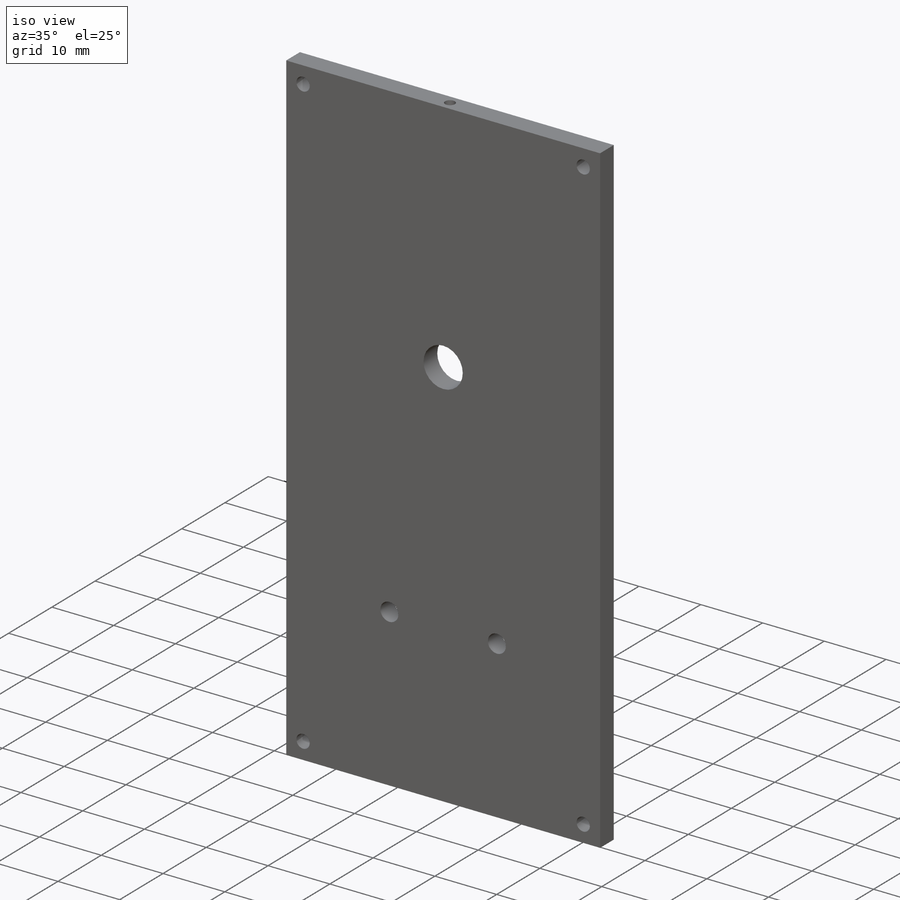
[diagram: iso view]
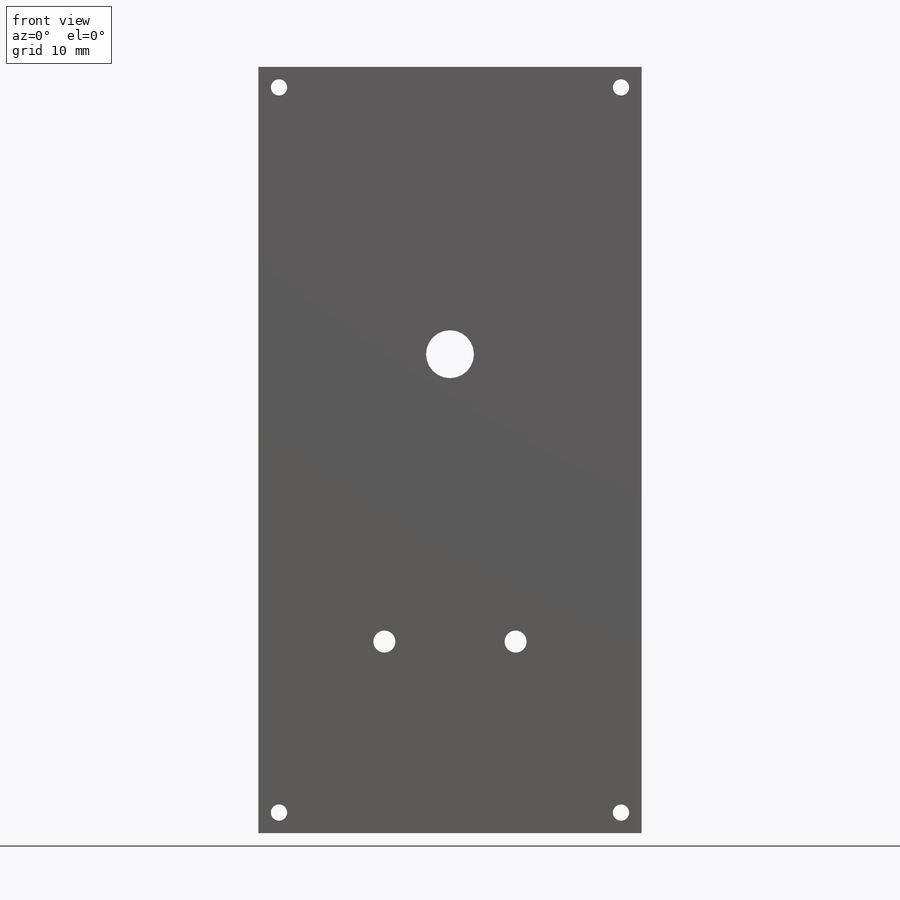
[diagram: front view]
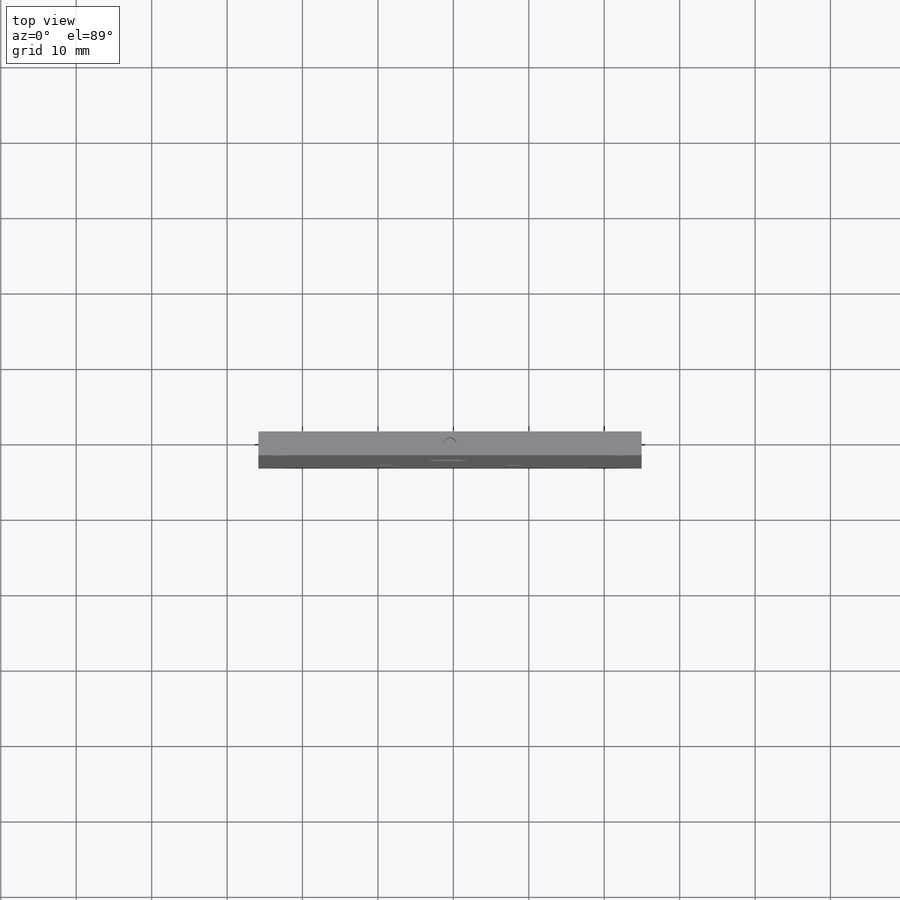
[diagram: top view]
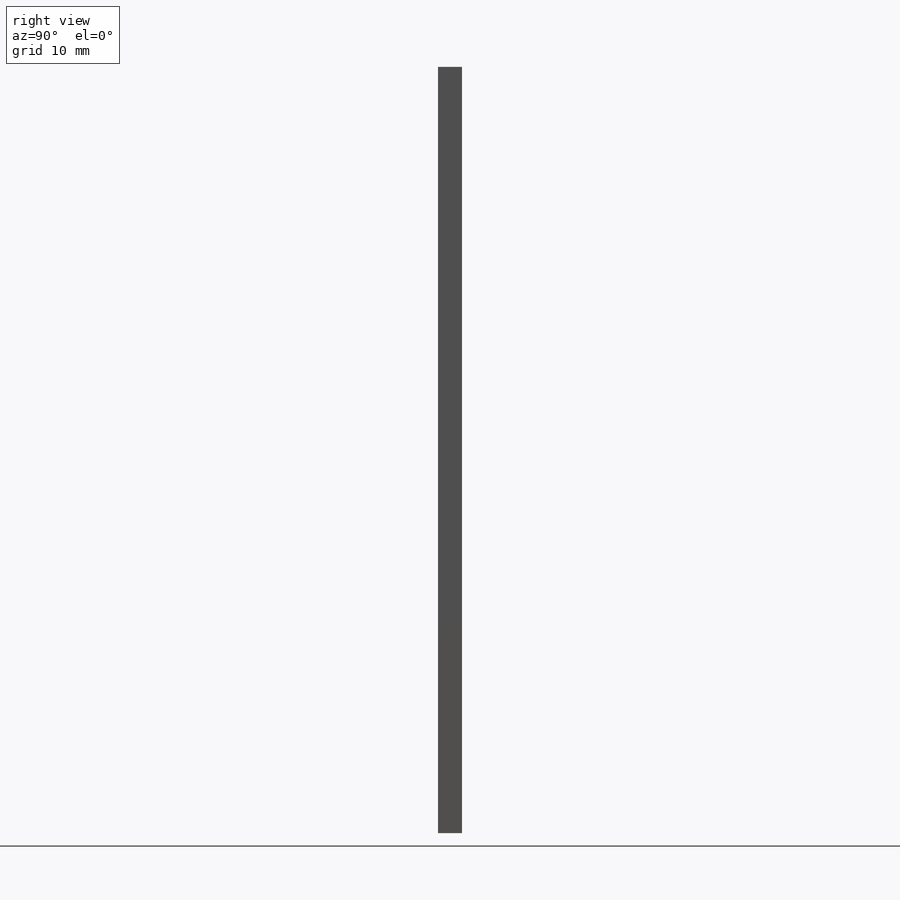
[diagram: right view]
SOLIDWORKS PART (.sldprt)
format: sldprt  version: not decoded by parser v0  size: 214,528 bytes
history: native  units: mm
features: sketch x5, cut_extrude x4, material x1, extrude x1 (+13 scaffold rows collapsed)
feature tree (24):
  scaffold x13  (default folders/planes/origin — collapsed)
  material  "Acrylic (Medium-high impact)"
  sketch  "Sketch1"  dims[c1.D3=2.159mm c1.D4=~5.609816mm c1.D6=3.175mm c1.D7=3.175mm c2.D6=2.159mm c2.D9=2.159mm c2.D12=2.159mm c2.D1=50.8mm c2.D2=101.6mm c2.D4=2.7305mm c2.D5=2.7305mm c2.D8=3.175mm c3.D9=3.175mm c3.D10=3.175mm c3.D11=19.05mm c3.D12=15.875mm c3.D7=2.7305mm c3.D8=2.7305mm c4.D10=2.7305mm c4.D11=2.7305mm c4.D13=2.7305mm c4.D14=2.7305mm]
  extrude  "Boss-Extrude1"  Depth=3.175mm
  sketch  "Sketch3"  dims[D1=1.5875mm D2=1.5875mm D3=25.4mm]
  cut_extrude  "Cut-Extrude1"  Depth=6.35mm
  sketch  "Sketch4"  dims[D1=1.5875mm D2=1.5875mm D3=25.4mm]
  cut_extrude  "Cut-Extrude2"  Depth=3.81mm
  sketch  "Sketch5"  dims[D1=6.35mm D2=63.5mm D3=25.4mm]
  cut_extrude  "Cut-Extrude3"  [1 undecoded]
  sketch  "Sketch6"  dims[c1.D1=2.921mm c1.D2=2.921mm c1.D7=6.35mm c1.D3=17.399mm c1.D4=25.4mm c1.D5=17.526mm c1.D6=17.526mm c2.D5=25.4mm c2.D6=16.7005mm c2.D7=16.7005mm]
  cut_extrude  "Cut-Extrude4"  [1 undecoded]
decode coverage: 8 of 10 modeling features carry decoded parameters
note: ~ marks probable driven/reference dimensions
note: 2 parameter values undecoded
note: suppression state not decoded; provenance and decode notes live in map.json
